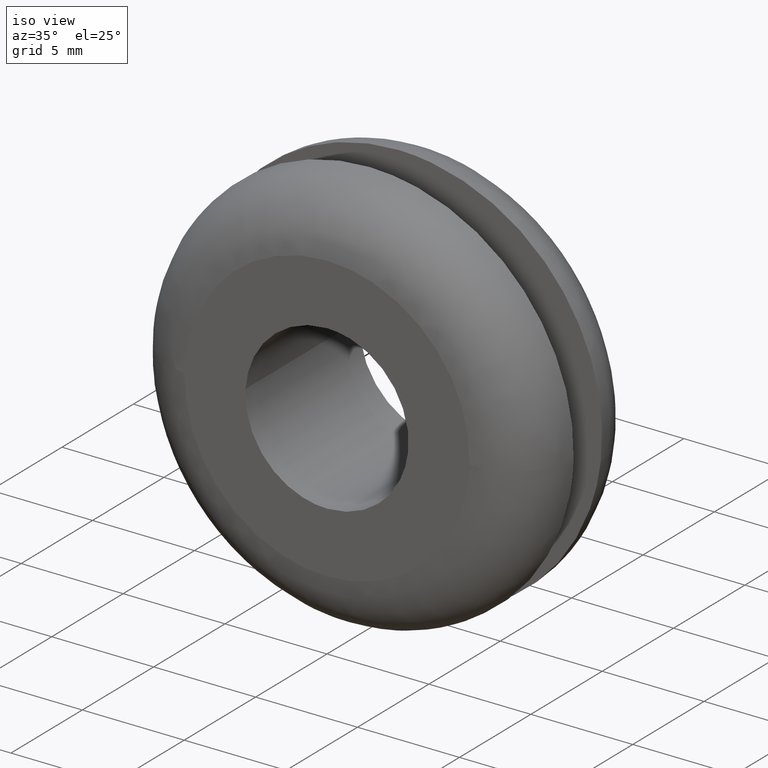
[diagram: clean part render]
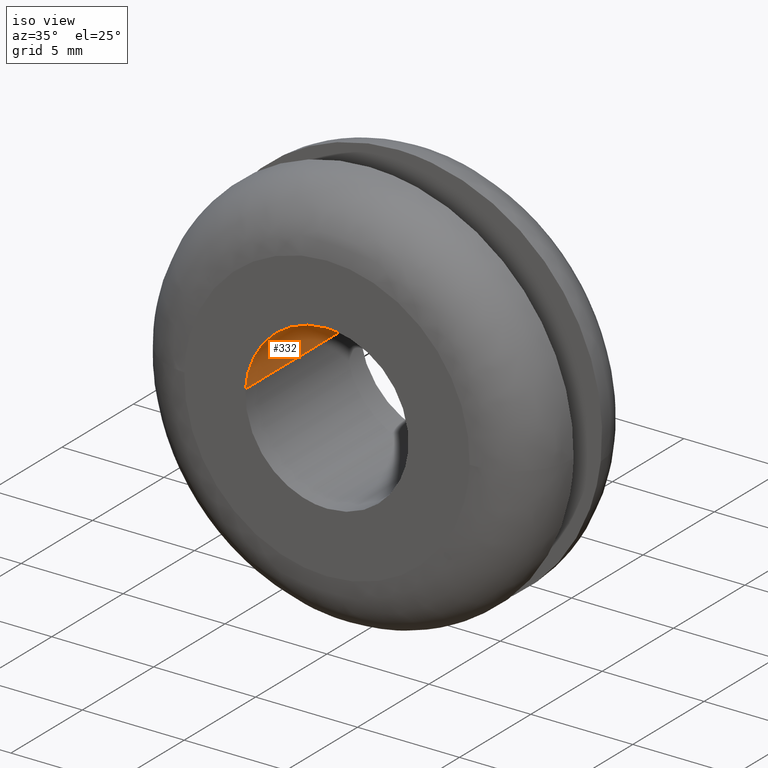
[diagram: same view with one face highlighted and labeled with its STEP entity id]
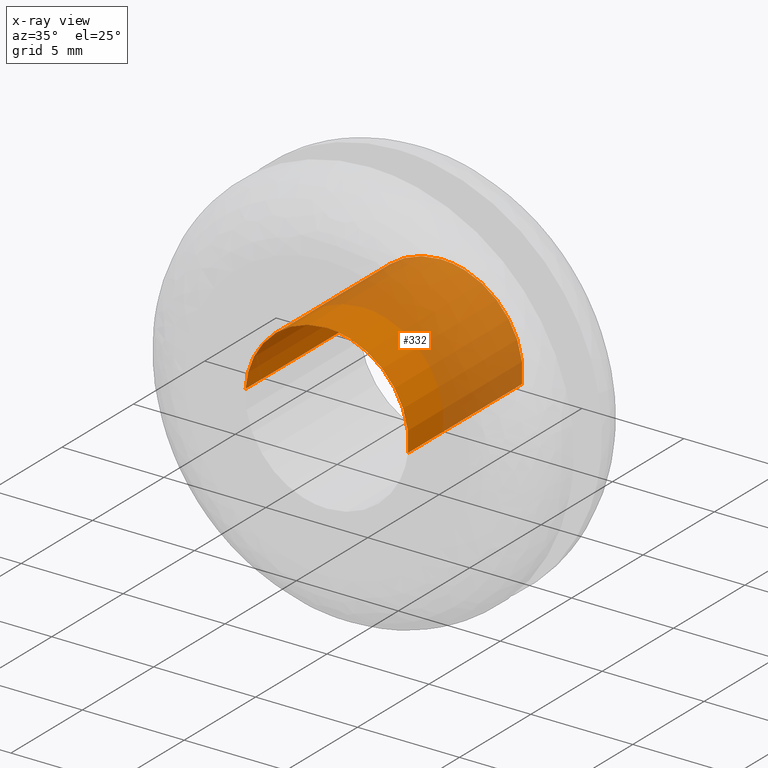
[diagram: x-ray of the same camera — body ghosted, the highlighted face saturated]
A machine part, iso view. The second image highlights one B-rep face of the part: STEP entity #332.
The next image is the same camera in x-ray: the body ghosted, the highlighted face saturated — about 63% of this face is hidden behind the body in this view.
In plain terms, the highlighted face is a freeform B-spline surface patch.
Its self-contained STEP definition (entity closure, byte-faithful):
#230=CARTESIAN_POINT('',(3.972038105454666,8.200000000000001,-0.472136938627034));
#231=CARTESIAN_POINT('',(3.985550461794422,8.199999999999999,-0.358458914551911));
#232=CARTESIAN_POINT('',(3.992539193687467,8.199999999999999,-0.244194158139428));
#233=CARTESIAN_POINT('',(4.236733351826894,8.199999999999999,3.748345035548039));
#234=CARTESIAN_POINT('',(0.244194158139428,8.199999999999999,3.992539193687467));
#235=CARTESIAN_POINT('',(-3.748345035548039,8.199999999999999,4.236733351826894));
#236=CARTESIAN_POINT('',(-3.992539193687467,8.199999999999999,0.244194158139428));
#237=CARTESIAN_POINT('',(3.972038105454666,-0.205000000000000,-0.472136938627034));
#238=CARTESIAN_POINT('',(3.985550461794422,-0.205000000000000,-0.358458914551911));
#239=CARTESIAN_POINT('',(3.992539193687467,-0.205000000000000,-0.244194158139428));
#240=CARTESIAN_POINT('',(4.236733351826894,-0.205000000000000,3.748345035548039));
#241=CARTESIAN_POINT('',(0.244194158139428,-0.205000000000000,3.992539193687467));
#242=CARTESIAN_POINT('',(-3.748345035548039,-0.205000000000000,4.236733351826894));
#243=CARTESIAN_POINT('',(-3.992539193687467,-0.205000000000000,0.244194158139428));
#251=(BOUNDED_SURFACE()B_SPLINE_SURFACE(2,1,((#230,#237),(#231,#238),(#232,#239),(#233,#240),(#234,#241),(#235,#242),(#236,#243)),.UNSPECIFIED.,.F.,.F.,.U.)B_SPLINE_SURFACE_WITH_KNOTS((3,2,2,3),(2,2),(0.0,0.265096679918781,6.892513677888300,13.519930675857820),(0.0,8.404999999999999),.UNSPECIFIED.)GEOMETRIC_REPRESENTATION_ITEM()RATIONAL_B_SPLINE_SURFACE(((0.977505800795127,0.977505800795127),(0.988284271247462,0.988284271247462),(1.0,1.0),(0.707106781186548,0.707106781186548),(1.0,1.0),(0.707106781186548,0.707106781186548),(1.0,1.0)))REPRESENTATION_ITEM('')SURFACE());
#252=CARTESIAN_POINT('',(3.972038936126205,8.0,-0.472129950170368));
#253=VERTEX_POINT('',#252);
#254=CARTESIAN_POINT('',(0.0,8.0,4.0));
#255=VERTEX_POINT('',#254);
#256=CARTESIAN_POINT('',(3.972038936126205,8.0,-0.472129950170368));
#257=CARTESIAN_POINT('',(4.0,8.0,-0.236892947439694));
#258=CARTESIAN_POINT('',(4.0,8.0,-1.836910E-016));
#259=CARTESIAN_POINT('',(4.000000000000000,8.0,4.000000000000000));
#260=CARTESIAN_POINT('',(0.0,8.0,4.0));
#268=(BOUNDED_CURVE()B_SPLINE_CURVE(2,(#256,#257,#258,#259,#260),.UNSPECIFIED.,.F.,.U.)B_SPLINE_CURVE_WITH_KNOTS((3,2,3),(0.229562770862239,0.250000000000000,0.500000000000000),.UNSPECIFIED.)CURVE()GEOMETRIC_REPRESENTATION_ITEM()RATIONAL_B_SPLINE_CURVE((0.956027337000208,0.976056296696852,1.0,0.707106781186548,1.0))REPRESENTATION_ITEM(''));
#269=EDGE_CURVE('',#253,#255,#268,.T.);
#270=ORIENTED_EDGE('',*,*,#269,.F.);
#271=CARTESIAN_POINT('',(3.972038926118297,-3.389876E-016,-0.472130034368349));
#272=VERTEX_POINT('',#271);
#273=CARTESIAN_POINT('',(3.972038936126205,8.0,-0.472129950170368));
#274=CARTESIAN_POINT('',(3.972038926118297,-3.389876E-016,-0.472130034368349));
#275=QUASI_UNIFORM_CURVE('',1,(#273,#274),.UNSPECIFIED.,.F.,.U.);
#276=EDGE_CURVE('',#253,#272,#275,.T.);
#277=ORIENTED_EDGE('',*,*,#276,.T.);
#278=CARTESIAN_POINT('',(0.0,-7.347638E-016,4.0));
#279=VERTEX_POINT('',#278);
#280=CARTESIAN_POINT('',(3.972038926118297,-3.389876E-016,-0.472130034368349));
#281=CARTESIAN_POINT('',(4.0,-7.347638E-016,-0.236892989983728));
#282=CARTESIAN_POINT('',(4.0,-7.347638E-016,-1.836910E-016));
#283=CARTESIAN_POINT('',(4.000000000000000,-7.347638E-016,4.000000000000000));
#284=CARTESIAN_POINT('',(0.0,-7.347638E-016,4.0));
#292=(BOUNDED_CURVE()B_SPLINE_CURVE(2,(#280,#281,#282,#283,#284),.UNSPECIFIED.,.F.,.U.)B_SPLINE_CURVE_WITH_KNOTS((3,2,3),(0.229562767279762,0.250000000000000,0.500000000000000),.UNSPECIFIED.)CURVE()GEOMETRIC_REPRESENTATION_ITEM()RATIONAL_B_SPLINE_CURVE((0.956027329978387,0.976056292499719,1.0,0.707106781186548,1.0))REPRESENTATION_ITEM(''));
#293=EDGE_CURVE('',#272,#279,#292,.T.);
#294=ORIENTED_EDGE('',*,*,#293,.T.);
#295=CARTESIAN_POINT('',(-3.992539270140139,-2.979930E-016,0.244192908142875));
#296=VERTEX_POINT('',#295);
#297=CARTESIAN_POINT('',(0.0,-7.347638E-016,4.0));
#298=CARTESIAN_POINT('',(-3.762825447901079,-7.347638E-016,4.000000000000001));
#299=CARTESIAN_POINT('',(-3.992539270140139,-2.979930E-016,0.244192908142875));
#307=(BOUNDED_CURVE()B_SPLINE_CURVE(2,(#297,#298,#299),.UNSPECIFIED.,.F.,.U.)B_SPLINE_CURVE_WITH_KNOTS((3,3),(0.500000000000000,0.739333016263455),.UNSPECIFIED.)CURVE()GEOMETRIC_REPRESENTATION_ITEM()RATIONAL_B_SPLINE_CURVE((1.0,0.719603929993058,0.976072157451558))REPRESENTATION_ITEM(''));
#308=EDGE_CURVE('',#279,#296,#307,.T.);
#309=ORIENTED_EDGE('',*,*,#308,.T.);
#310=CARTESIAN_POINT('',(-3.992539271071073,7.999999999999998,0.244192892922069));
#311=VERTEX_POINT('',#310);
#312=CARTESIAN_POINT('',(-3.992539271071073,7.999999999999998,0.244192892922069));
#313=CARTESIAN_POINT('',(-3.992539270140139,-2.979930E-016,0.244192908142875));
#314=QUASI_UNIFORM_CURVE('',1,(#312,#313),.UNSPECIFIED.,.F.,.U.);
#315=EDGE_CURVE('',#311,#296,#314,.T.);
#316=ORIENTED_EDGE('',*,*,#315,.F.);
#317=CARTESIAN_POINT('',(0.0,8.0,4.0));
#318=CARTESIAN_POINT('',(-3.762825462272950,8.0,4.000000000000000));
#319=CARTESIAN_POINT('',(-3.992539271071073,7.999999999999998,0.244192892922069));
#327=(BOUNDED_CURVE()B_SPLINE_CURVE(2,(#317,#318,#319),.UNSPECIFIED.,.F.,.U.)B_SPLINE_CURVE_WITH_KNOTS((3,3),(0.500000000000000,0.739333016921257),.UNSPECIFIED.)CURVE()GEOMETRIC_REPRESENTATION_ITEM()RATIONAL_B_SPLINE_CURVE((1.0,0.719603929222394,0.976072158861354))REPRESENTATION_ITEM(''));
#328=EDGE_CURVE('',#255,#311,#327,.T.);
#329=ORIENTED_EDGE('',*,*,#328,.F.);
#330=EDGE_LOOP('',(#270,#277,#294,#309,#316,#329));
#331=FACE_OUTER_BOUND('',#330,.T.);
#332=ADVANCED_FACE('',(#331),#251,.F.);